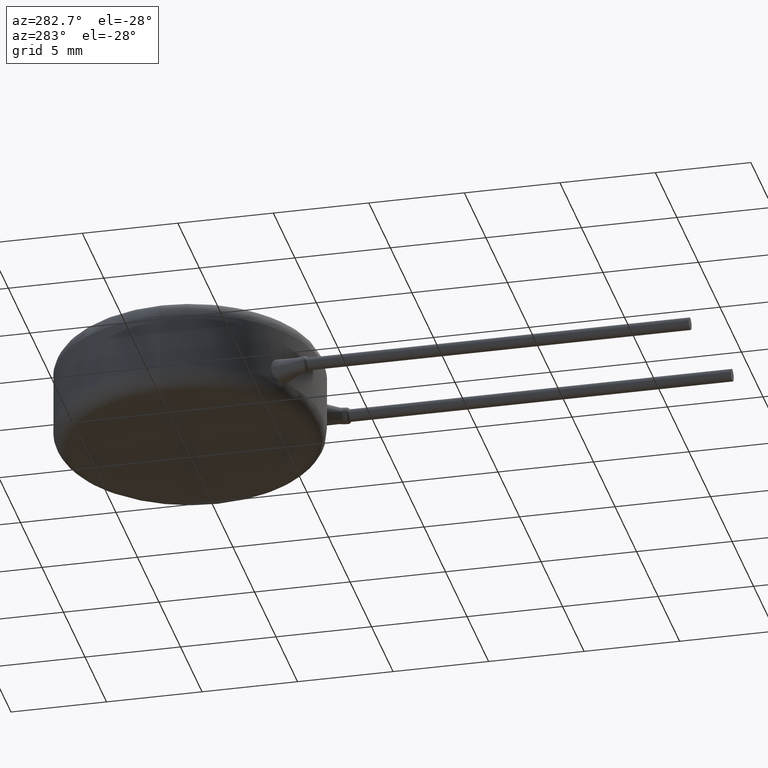
[diagram: clean part render]
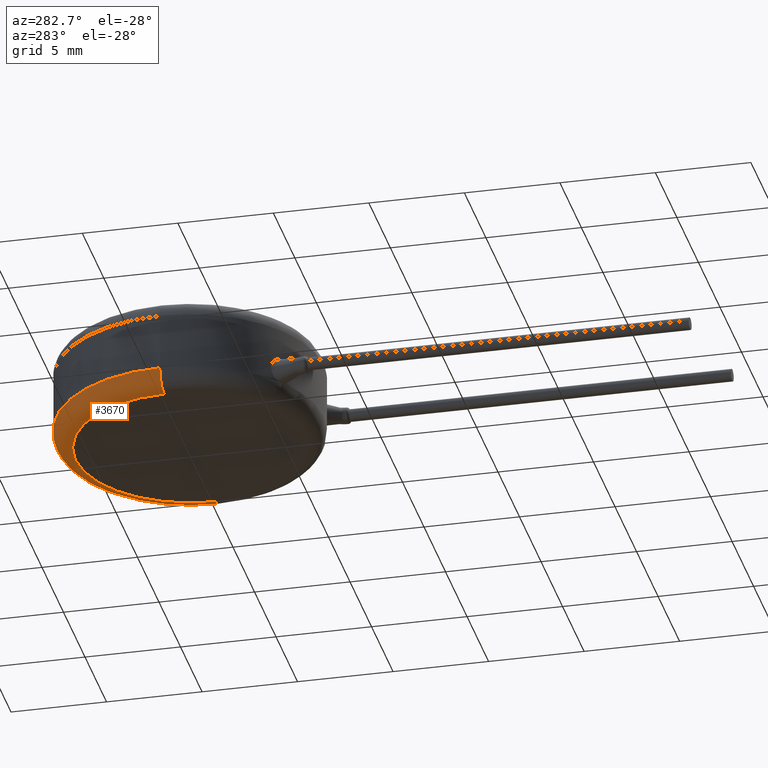
[diagram: same view with one face highlighted and labeled with its STEP entity id]
A machine part, auxiliary view. The second image highlights one B-rep face of the part: STEP entity #3670.
In plain terms, the highlighted toroidal blend (fillet) surface has major radius 6 mm and minor (blend) radius 1 mm.
Its self-contained STEP definition (entity closure, byte-faithful):
#91 = CIRCLE ( 'NONE', #2837, 6.000000000000000000 ) ;
#408 = CIRCLE ( 'NONE', #2149, 1.000000000000000000 ) ;
#506 = DIRECTION ( 'NONE',  ( 0.0000000000000000000, 0.0000000000000000000, -1.000000000000000000 ) ) ;
#611 = VERTEX_POINT ( 'NONE', #2133 ) ;
#658 = DIRECTION ( 'NONE',  ( 0.0000000000000000000, 0.0000000000000000000, 1.000000000000000000 ) ) ;
#710 = ORIENTED_EDGE ( 'NONE', *, *, #1952, .F. ) ;
#812 = TOROIDAL_SURFACE ( 'NONE', #2335, 6.000000000000000000, 1.000000000000000000 ) ;
#899 = CARTESIAN_POINT ( 'NONE',  ( 0.0000000000000000000, 0.0000000000000000000, 1.000000000000000000 ) ) ;
#996 = EDGE_CURVE ( 'NONE', #1427, #2054, #4129, .T. ) ;
#1012 = DIRECTION ( 'NONE',  ( 1.000000000000000000, 0.0000000000000000000, 0.0000000000000000000 ) ) ;
#1027 = FACE_OUTER_BOUND ( 'NONE', #1382, .T. ) ;
#1065 = CARTESIAN_POINT ( 'NONE',  ( -6.000000000000000000, 7.347880794884119700E-016, 1.000000000000000000 ) ) ;
#1297 = CIRCLE ( 'NONE', #3536, 7.000000000000000000 ) ;
#1382 = EDGE_LOOP ( 'NONE', ( #2912, #1423, #710, #2532 ) ) ;
#1423 = ORIENTED_EDGE ( 'NONE', *, *, #996, .T. ) ;
#1427 = VERTEX_POINT ( 'NONE', #2524 ) ;
#1486 = DIRECTION ( 'NONE',  ( -0.0000000000000000000, -0.0000000000000000000, -1.000000000000000000 ) ) ;
#1662 = DIRECTION ( 'NONE',  ( 0.0000000000000000000, 0.0000000000000000000, 1.000000000000000000 ) ) ;
#1952 = EDGE_CURVE ( 'NONE', #2857, #2054, #1297, .T. ) ;
#2054 = VERTEX_POINT ( 'NONE', #3045 ) ;
#2124 = CARTESIAN_POINT ( 'NONE',  ( 6.000000000000000000, 0.0000000000000000000, 1.000000000000000000 ) ) ;
#2133 = CARTESIAN_POINT ( 'NONE',  ( 6.000000000000000000, 0.0000000000000000000, 0.0000000000000000000 ) ) ;
#2149 = AXIS2_PLACEMENT_3D ( 'NONE', #2124, #2767, #506 ) ;
#2178 = EDGE_CURVE ( 'NONE', #1427, #611, #91, .T. ) ;
#2335 = AXIS2_PLACEMENT_3D ( 'NONE', #899, #1662, #2703 ) ;
#2370 = DIRECTION ( 'NONE',  ( -1.000000000000000000, 1.224646799147353500E-016, 0.0000000000000000000 ) ) ;
#2524 = CARTESIAN_POINT ( 'NONE',  ( -6.000000000000000000, 7.960204194457795500E-016, 0.0000000000000000000 ) ) ;
#2532 = ORIENTED_EDGE ( 'NONE', *, *, #4239, .F. ) ;
#2703 = DIRECTION ( 'NONE',  ( 1.000000000000000000, 0.0000000000000000000, 0.0000000000000000000 ) ) ;
#2767 = DIRECTION ( 'NONE',  ( 0.0000000000000000000, -1.000000000000000000, 0.0000000000000000000 ) ) ;
#2837 = AXIS2_PLACEMENT_3D ( 'NONE', #3846, #1486, #4110 ) ;
#2857 = VERTEX_POINT ( 'NONE', #3764 ) ;
#2912 = ORIENTED_EDGE ( 'NONE', *, *, #2178, .F. ) ;
#2936 = CARTESIAN_POINT ( 'NONE',  ( 0.0000000000000000000, 0.0000000000000000000, 1.000000000000000000 ) ) ;
#3045 = CARTESIAN_POINT ( 'NONE',  ( -7.000000000000000000, 0.0000000000000000000, 1.000000000000000000 ) ) ;
#3536 = AXIS2_PLACEMENT_3D ( 'NONE', #2936, #658, #1012 ) ;
#3670 = ADVANCED_FACE ( 'NONE', ( #1027 ), #812, .T. ) ;
#3764 = CARTESIAN_POINT ( 'NONE',  ( 7.000000000000000000, 8.572527594031473200E-016, 1.000000000000000000 ) ) ;
#3840 = AXIS2_PLACEMENT_3D ( 'NONE', #1065, #3980, #2370 ) ;
#3846 = CARTESIAN_POINT ( 'NONE',  ( 0.0000000000000000000, 0.0000000000000000000, 0.0000000000000000000 ) ) ;
#3980 = DIRECTION ( 'NONE',  ( 1.224646799147353200E-016, 1.000000000000000000, -0.0000000000000000000 ) ) ;
#4110 = DIRECTION ( 'NONE',  ( 1.000000000000000000, 0.0000000000000000000, 0.0000000000000000000 ) ) ;
#4129 = CIRCLE ( 'NONE', #3840, 1.000000000000000000 ) ;
#4239 = EDGE_CURVE ( 'NONE', #611, #2857, #408, .T. ) ;